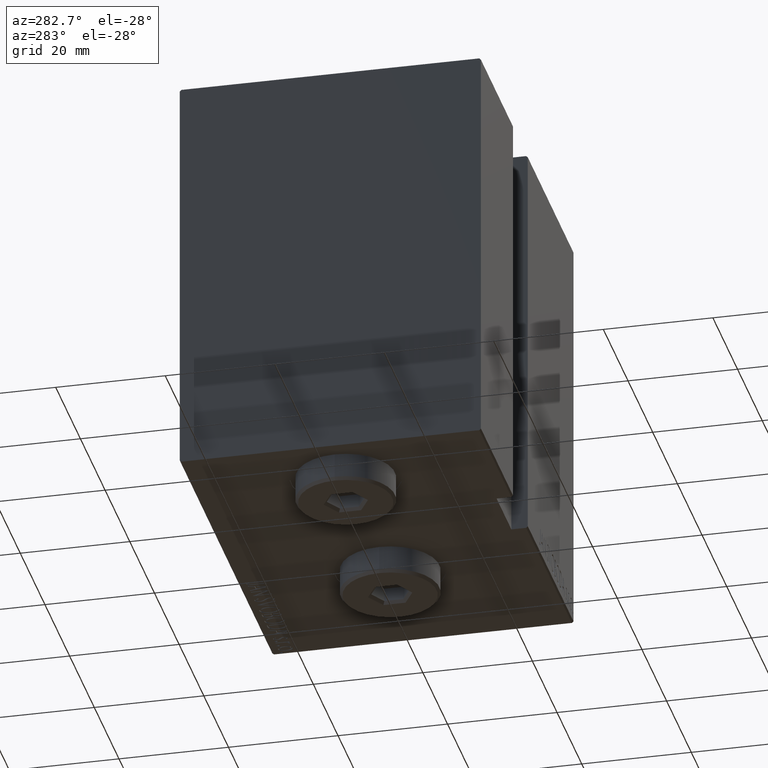
[diagram: clean part render]
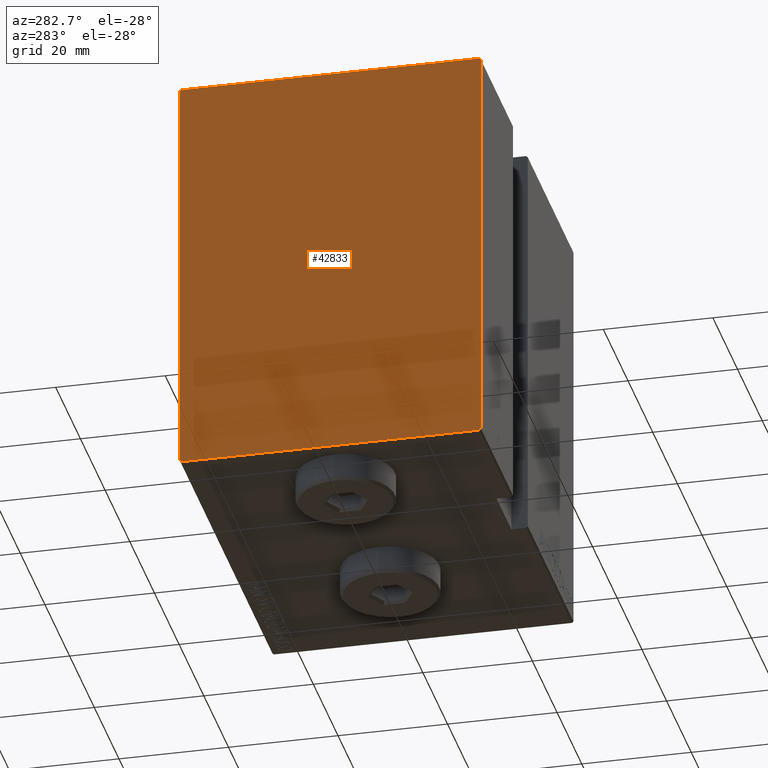
[diagram: same view with one face highlighted and labeled with its STEP entity id]
A machine part, auxiliary view. The second image highlights one B-rep face of the part: STEP entity #42833.
In plain terms, the highlighted planar face has unit normal (-1, 0, 0).
Its self-contained STEP definition (entity closure, byte-faithful):
#1565 = EDGE_CURVE ( 'NONE', #9799, #26847, #7030, .T. ) ;
#1623 = LINE ( 'NONE', #42306, #38453 ) ;
#2262 = VECTOR ( 'NONE', #36611, 1000.000000000000000 ) ;
#2342 = EDGE_CURVE ( 'NONE', #5313, #9799, #41251, .T. ) ;
#2587 = CARTESIAN_POINT ( 'NONE',  ( 75.00000000000000000, 0.000000000000000000, 0.000000000000000000 ) ) ;
#3407 = ORIENTED_EDGE ( 'NONE', *, *, #4455, .T. ) ;
#4276 = AXIS2_PLACEMENT_3D ( 'NONE', #2587, #19510, #15728 ) ;
#4455 = EDGE_CURVE ( 'NONE', #26847, #38669, #23781, .T. ) ;
#4886 = EDGE_CURVE ( 'NONE', #39874, #7819, #29268, .T. ) ;
#5313 = VERTEX_POINT ( 'NONE', #27819 ) ;
#5487 = FACE_OUTER_BOUND ( 'NONE', #22998, .T. ) ;
#5660 = CARTESIAN_POINT ( 'NONE',  ( 75.00000000000000000, 32.35000000000000142, 32.35000000000000142 ) ) ;
#7030 = LINE ( 'NONE', #30610, #20399 ) ;
#7142 = CARTESIAN_POINT ( 'NONE',  ( 75.00000000000000000, -32.34999999999983800, 32.35000000000021458 ) ) ;
#7378 = EDGE_CURVE ( 'NONE', #7819, #37429, #15529, .T. ) ;
#7609 = DIRECTION ( 'NONE',  ( 0.000000000000000000, -9.251858538542970348E-17, 1.000000000000000000 ) ) ;
#7819 = VERTEX_POINT ( 'NONE', #29273 ) ;
#7849 = CARTESIAN_POINT ( 'NONE',  ( 75.00000000000000000, 27.19999999999999929, -37.50000000000000711 ) ) ;
#9799 = VERTEX_POINT ( 'NONE', #30343 ) ;
#9998 = EDGE_CURVE ( 'NONE', #38669, #43809, #1623, .T. ) ;
#10070 = ORIENTED_EDGE ( 'NONE', *, *, #24128, .T. ) ;
#10802 = CARTESIAN_POINT ( 'NONE',  ( 75.00000000000000000, -27.50000000000000000, 37.49999999999999289 ) ) ;
#10949 = CARTESIAN_POINT ( 'NONE',  ( 75.00000000000000000, 27.50000000000000355, -37.50000000000000711 ) ) ;
#11000 = EDGE_CURVE ( 'NONE', #37429, #5313, #40928, .T. ) ;
#14353 = DIRECTION ( 'NONE',  ( -0.000000000000000000, 0.7071067811865474617, -0.7071067811865474617 ) ) ;
#15529 = LINE ( 'NONE', #15745, #2262 ) ;
#15728 = DIRECTION ( 'NONE',  ( 0.000000000000000000, 0.000000000000000000, -1.000000000000000000 ) ) ;
#15745 = CARTESIAN_POINT ( 'NONE',  ( 75.00000000000000000, 27.49999999999999645, 37.50000000000000711 ) ) ;
#17195 = ORIENTED_EDGE ( 'NONE', *, *, #11000, .T. ) ;
#18233 = CARTESIAN_POINT ( 'NONE',  ( 75.00000000000000000, -27.19999999999999218, -37.50000000000000711 ) ) ;
#19510 = DIRECTION ( 'NONE',  ( 1.000000000000000000, 0.000000000000000000, 0.000000000000000000 ) ) ;
#20399 = VECTOR ( 'NONE', #14353, 1000.000000000000114 ) ;
#20686 = VECTOR ( 'NONE', #34412, 1000.000000000000000 ) ;
#20878 = CARTESIAN_POINT ( 'NONE',  ( 75.00000000000000000, -27.50000000000000000, -37.50000000000000711 ) ) ;
#21380 = VECTOR ( 'NONE', #32581, 1000.000000000000114 ) ;
#22998 = EDGE_LOOP ( 'NONE', ( #3407, #35594, #10070, #29033, #28515, #17195, #37491, #29372 ) ) ;
#23781 = LINE ( 'NONE', #20878, #20686 ) ;
#23949 = CARTESIAN_POINT ( 'NONE',  ( 75.00000000000000000, 27.50000000000000355, -37.19999999999999574 ) ) ;
#24128 = EDGE_CURVE ( 'NONE', #43809, #39874, #41400, .T. ) ;
#24391 = DIRECTION ( 'NONE',  ( 0.000000000000000000, 0.000000000000000000, -1.000000000000000000 ) ) ;
#26793 = CARTESIAN_POINT ( 'NONE',  ( 75.00000000000000000, -27.20000000000000284, 37.49999999999999289 ) ) ;
#26847 = VERTEX_POINT ( 'NONE', #18233 ) ;
#27819 = CARTESIAN_POINT ( 'NONE',  ( 75.00000000000000000, -27.50000000000000000, 37.19999999999999574 ) ) ;
#28515 = ORIENTED_EDGE ( 'NONE', *, *, #7378, .T. ) ;
#29033 = ORIENTED_EDGE ( 'NONE', *, *, #4886, .T. ) ;
#29268 = LINE ( 'NONE', #5660, #21380 ) ;
#29273 = CARTESIAN_POINT ( 'NONE',  ( 75.00000000000000000, 27.20000000000000284, 37.50000000000000711 ) ) ;
#29372 = ORIENTED_EDGE ( 'NONE', *, *, #1565, .T. ) ;
#30343 = CARTESIAN_POINT ( 'NONE',  ( 75.00000000000000000, -27.50000000000000000, -37.19999999999999574 ) ) ;
#30610 = CARTESIAN_POINT ( 'NONE',  ( 75.00000000000000000, -32.34999999999999432, -32.34999999999999432 ) ) ;
#31729 = VECTOR ( 'NONE', #24391, 1000.000000000000000 ) ;
#32097 = DIRECTION ( 'NONE',  ( -0.000000000000000000, 0.7071067811865434649, 0.7071067811865516806 ) ) ;
#32581 = DIRECTION ( 'NONE',  ( -0.000000000000000000, -0.7071067811865474617, 0.7071067811865474617 ) ) ;
#33268 = PLANE ( 'NONE',  #4276 ) ;
#34412 = DIRECTION ( 'NONE',  ( 0.000000000000000000, 1.000000000000000000, 0.000000000000000000 ) ) ;
#34485 = DIRECTION ( 'NONE',  ( 0.000000000000000000, -0.7071067811865515695, -0.7071067811865435759 ) ) ;
#35594 = ORIENTED_EDGE ( 'NONE', *, *, #9998, .T. ) ;
#35650 = VECTOR ( 'NONE', #34485, 999.9999999999998863 ) ;
#36611 = DIRECTION ( 'NONE',  ( 0.000000000000000000, -1.000000000000000000, -2.523234146875355998E-16 ) ) ;
#37429 = VERTEX_POINT ( 'NONE', #26793 ) ;
#37491 = ORIENTED_EDGE ( 'NONE', *, *, #2342, .T. ) ;
#38453 = VECTOR ( 'NONE', #32097, 1000.000000000000000 ) ;
#38669 = VERTEX_POINT ( 'NONE', #7849 ) ;
#38800 = VECTOR ( 'NONE', #7609, 1000.000000000000000 ) ;
#39874 = VERTEX_POINT ( 'NONE', #40075 ) ;
#40075 = CARTESIAN_POINT ( 'NONE',  ( 75.00000000000000000, 27.49999999999999645, 37.20000000000000995 ) ) ;
#40928 = LINE ( 'NONE', #7142, #35650 ) ;
#41251 = LINE ( 'NONE', #10802, #31729 ) ;
#41400 = LINE ( 'NONE', #10949, #38800 ) ;
#42306 = CARTESIAN_POINT ( 'NONE',  ( 75.00000000000000000, 32.35000000000016485, -32.34999999999978826 ) ) ;
#42833 = ADVANCED_FACE ( 'NONE', ( #5487 ), #33268, .T. ) ;
#43809 = VERTEX_POINT ( 'NONE', #23949 ) ;